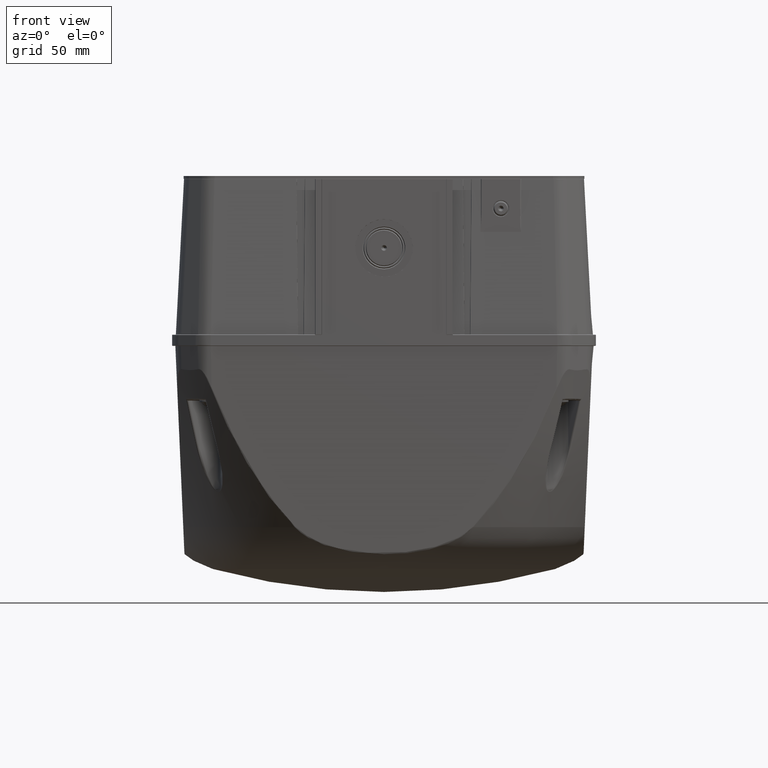
[diagram: clean part render]
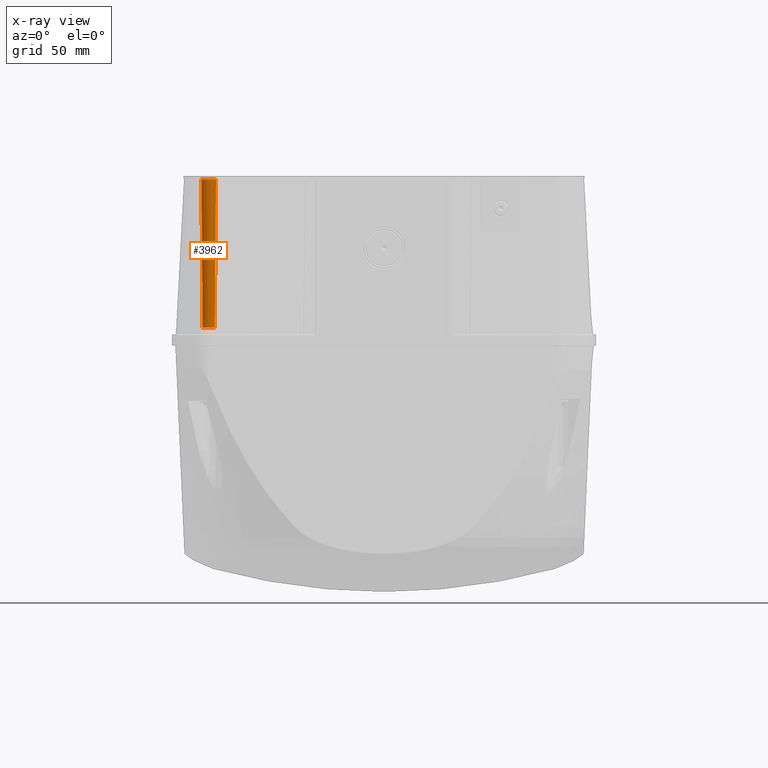
[diagram: x-ray — body ghosted, one internal face saturated and labeled with its STEP entity id]
A machine part, front view, then the same camera in x-ray: the body is ghosted and one INTERNAL B-rep face — a face not visible from any outside direction — is saturated and labeled: STEP entity #3962.
In plain terms, the highlighted conical surface has half-angle 0.5 deg.
Its self-contained STEP definition (entity closure, byte-faithful):
#86=CONICAL_SURFACE('',#23797,4.05000000000001,0.5);
#3962=ADVANCED_FACE('',(#4714,#4715),#86,.F.);
#4714=FACE_BOUND('',#6099,.T.);
#4715=FACE_BOUND('',#6100,.T.);
#6099=EDGE_LOOP('',(#13900,#13901,#13902,#13903));
#6100=EDGE_LOOP('',(#13904));
#9007=B_SPLINE_CURVE_WITH_KNOTS('',3,(#36199,#36200,#36201,#36202,#36203),
 .UNSPECIFIED.,.F.,.F.,(4,1,4),(0.,0.5,1.),.UNSPECIFIED.);
#9010=B_SPLINE_CURVE_WITH_KNOTS('',3,(#36238,#36239,#36240,#36241),.UNSPECIFIED.,
 .F.,.F.,(4,4),(0.,1.),.UNSPECIFIED.);
#9011=B_SPLINE_CURVE_WITH_KNOTS('',3,(#36263,#36264,#36265,#36266),.UNSPECIFIED.,
 .F.,.F.,(4,4),(0.,1.),.UNSPECIFIED.);
#13900=ORIENTED_EDGE('',*,*,#17516,.T.);
#13901=ORIENTED_EDGE('',*,*,#17512,.T.);
#13902=ORIENTED_EDGE('',*,*,#17507,.T.);
#13903=ORIENTED_EDGE('',*,*,#17514,.T.);
#13904=ORIENTED_EDGE('',*,*,#18170,.T.);
#15606=VERTEX_POINT('',#36198);
#15607=VERTEX_POINT('',#36204);
#15609=VERTEX_POINT('',#36232);
#15612=VERTEX_POINT('',#36262);
#16025=VERTEX_POINT('',#38067);
#17507=EDGE_CURVE('',#15607,#15606,#9007,.T.);
#17512=EDGE_CURVE('',#15609,#15607,#9010,.T.);
#17514=EDGE_CURVE('',#15606,#15612,#9011,.T.);
#17516=EDGE_CURVE('',#15612,#15609,#20389,.T.);
#18170=EDGE_CURVE('',#16025,#16025,#20769,.T.);
#20389=CIRCLE('',#21673,3.99722148869631);
#20769=CIRCLE('',#22292,3.29860145215136);
#21673=AXIS2_PLACEMENT_3D('',#36289,#24625,#24626);
#22292=AXIS2_PLACEMENT_3D('',#38066,#26091,#26092);
#23797=AXIS2_PLACEMENT_3D('',#46717,#29823,#29824);
#24625=DIRECTION('',(0.,0.,-1.));
#24626=DIRECTION('',(0.999999999999998,0.,0.));
#26091=DIRECTION('',(0.,0.,1.));
#26092=DIRECTION('',(0.999999999999998,0.,0.));
#29823=DIRECTION('',(0.,0.,-1.));
#29824=DIRECTION('',(-1.,0.,-2.17233018844445E-015));
#36198=CARTESIAN_POINT('',(-137.036563476699,92.0211902532054,0.179759551086895));
#36199=CARTESIAN_POINT('',(-136.378809746796,91.3634365233015,0.179759551086765));
#36200=CARTESIAN_POINT('',(-136.501372619096,91.4601248943028,0.164257858703683));
#36201=CARTESIAN_POINT('',(-136.733413446954,91.6665865530473,0.151100256897639));
#36202=CARTESIAN_POINT('',(-136.939875105698,91.8986273809054,0.164257858703519));
#36203=CARTESIAN_POINT('',(-137.036563476699,92.0211902532054,0.179759551086891));
#36204=CARTESIAN_POINT('',(-136.378809746796,91.3634365233015,0.179759551086765));
#36232=CARTESIAN_POINT('',(-135.697716696325,90.9298467386609,0.247818366125407));
#36238=CARTESIAN_POINT('',(-135.697716696325,90.9298467386609,0.247818366125407));
#36239=CARTESIAN_POINT('',(-135.941028168727,91.0523639149069,0.247818366125409));
#36240=CARTESIAN_POINT('',(-136.166705146538,91.1961097636072,0.206586437602286));
#36241=CARTESIAN_POINT('',(-136.378809746796,91.3634365233015,0.179759551086771));
#36262=CARTESIAN_POINT('',(-137.470153261339,92.7022833036751,0.247818366125407));
#36263=CARTESIAN_POINT('',(-137.036563476699,92.0211902532054,0.179759551086895));
#36264=CARTESIAN_POINT('',(-137.203890236393,92.2332948534627,0.20658643760241));
#36265=CARTESIAN_POINT('',(-137.347636085093,92.4589718312733,0.247818366125414));
#36266=CARTESIAN_POINT('',(-137.470153261339,92.7022833036751,0.247818366125409));
#36289=CARTESIAN_POINT('',(-133.9,94.5,0.247818366125419));
#38066=CARTESIAN_POINT('',(-133.9,94.5,80.3017453070997));
#38067=CARTESIAN_POINT('',(-130.601398547849,94.5,80.3017453070997));
#46717=CARTESIAN_POINT('',(-133.9,94.5,-5.8));